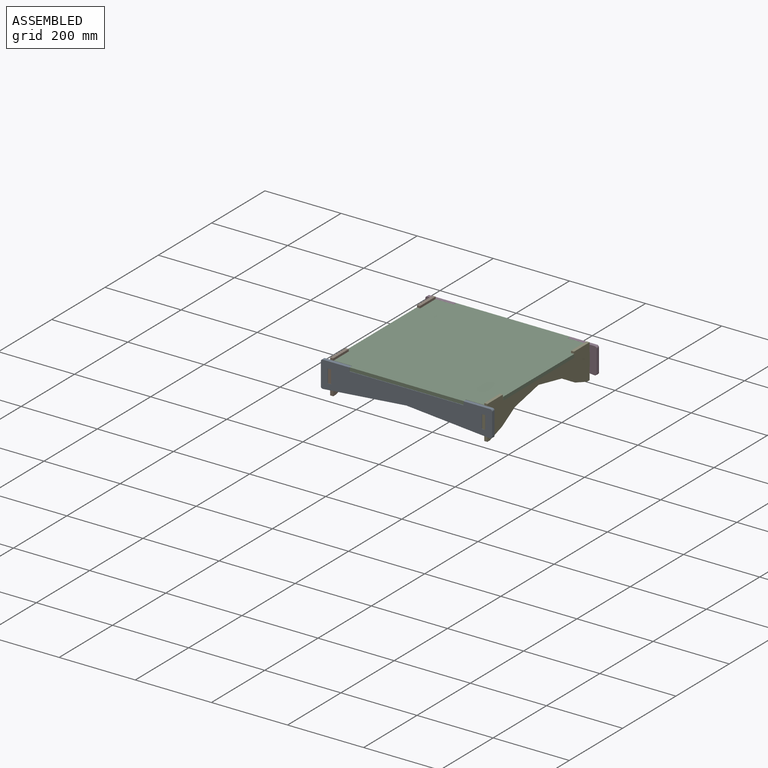
[diagram: assembled view]
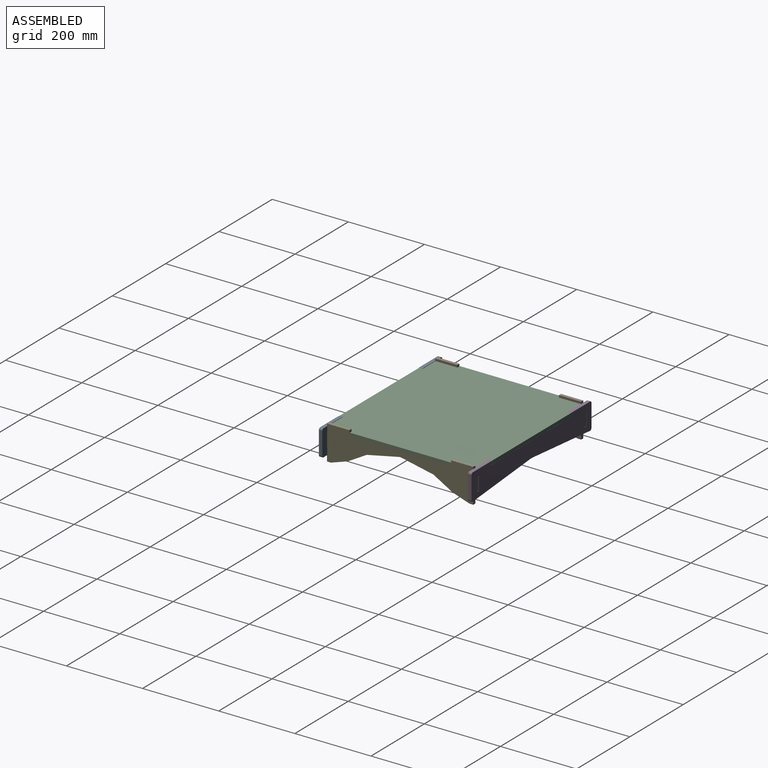
[diagram: assembled view, second angle]
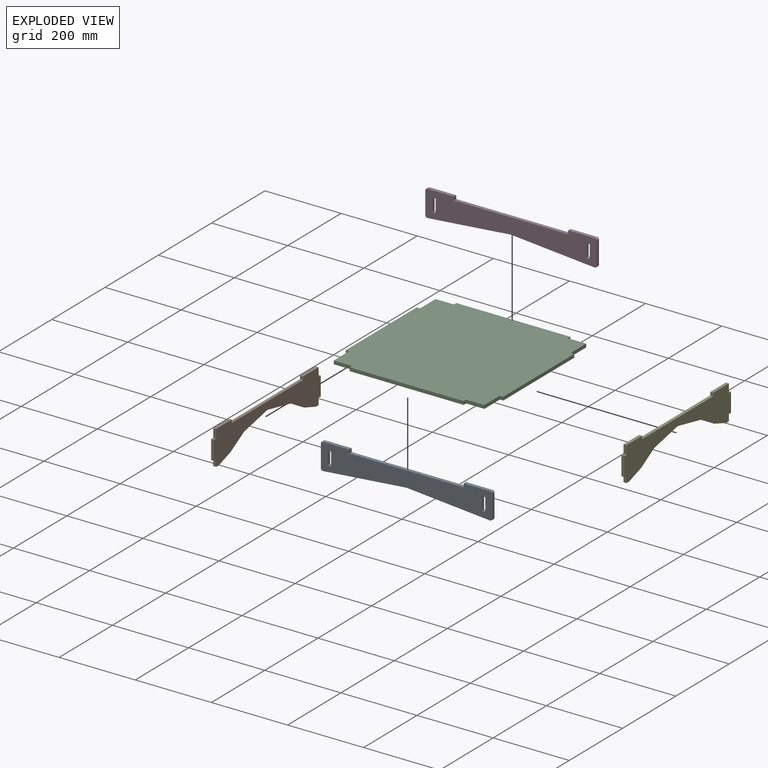
[diagram: exploded view]
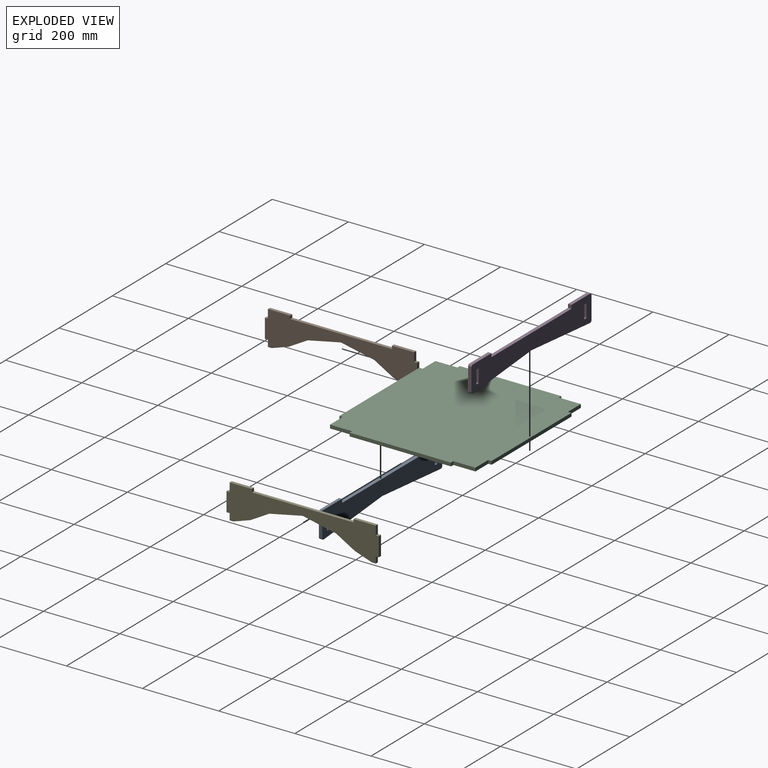
[diagram: exploded view, second angle]
ASSEMBLY  parts=5 mates=4
PART A: 23 faces, bbox 450x9x69.5 mm
  f0: plane 9.2x9mm, normal (0,0,-1), area 82.8mm2, adj f1,f20,f21,f22
  f1: plane 35.2x9mm, normal (-1,0,0), area 316.8mm2, adj f0,f2,f21,f22
  f2: plane 9.2x9mm, normal (0,0,1), area 82.8mm2, adj f1,f20,f21,f22
  f3: cylinder r=5mm len=9mm, axis (0,1,0), area 74.6mm2, adj f4,f18,f21,f22
  f4: plane 219.56x19.21mm, normal (0.09,0,-1), area 1983.6mm2, adj f3,f5,f21,f22
  f5: plane 219.56x19.21mm, normal (-0.09,0,-1), area 1983.6mm2, adj f4,f6,f21,f22
  f6: cylinder r=5mm len=9mm, axis (0,1,0), area 74.6mm2, adj f5,f7,f21,f22
  f7: plane 59.54x9mm, normal (1,0,0), area 535.9mm2, adj f6,f8,f21,f22
  f8: cylinder r=5mm len=9mm, axis (0,1,0), area 70.7mm2, adj f7,f9,f21,f22
  f9: plane 70x9mm, normal (0,0,1), area 630mm2, adj f8,f10,f21,f22
  f10: plane 9.2x9mm, normal (-1,0,0), area 82.8mm2, adj f9,f11,f21,f22
  f11: plane 300x9mm, normal (0,0,1), area 2700mm2, adj f10,f12,f21,f22
  f12: plane 9.2x9mm, normal (1,0,0), area 82.8mm2, adj f11,f13,f21,f22
  f13: plane 70x9mm, normal (0,0,1), area 630mm2, adj f12,f14,f21,f22
  f14: cylinder r=5mm len=9mm, axis (0,1,0), area 70.7mm2, adj f13,f18,f21,f22
  f15: plane 35.2x9mm, normal (1,0,0), area 316.8mm2, adj f16,f19,f21,f22
  f16: plane 9.2x9mm, normal (0,0,-1), area 82.8mm2, adj f15,f17,f21,f22
  f17: plane 35.2x9mm, normal (-1,0,0), area 316.8mm2, adj f16,f19,f21,f22
  f18: plane 59.54x9mm, normal (-1,0,0), area 535.9mm2, adj f3,f14,f21,f22
  f19: plane 9.2x9mm, normal (0,0,1), area 82.8mm2, adj f15,f17,f21,f22
  f20: plane 35.2x9mm, normal (1,0,0), area 316.8mm2, adj f0,f2,f21,f22
  f21: plane 450x69.54mm, normal (0,-1,0), area 23639.4mm2, adj f0,f1,f2,f3,f4,f5,f6,f7
  f22: plane 450x69.54mm, normal (0,1,0), area 23639.4mm2, adj f0,f1,f2,f3,f4,f5,f6,f7
PART B: 25 faces, bbox 400x8x90 mm
  f0: plane 22.89x8mm, normal (1,0,0), area 183.1mm2, adj f1,f22,f23,f24
  f1: plane 58.47x8mm, normal (0,0,1), area 467.7mm2, adj f0,f2,f23,f24
  f2: plane 8x8mm, normal (-1,0,0), area 64mm2, adj f1,f3,f23,f24
  f3: plane 267.07x8mm, normal (0,0,1), area 2136.5mm2, adj f2,f4,f23,f24
  f4: plane 8x8mm, normal (1,0,0), area 64mm2, adj f3,f5,f23,f24
  f5: plane 58.47x8mm, normal (0,0,1), area 467.7mm2, adj f4,f6,f23,f24
  f6: plane 22.89x8mm, normal (-1,0,0), area 183.1mm2, adj f5,f7,f23,f24
  f7: plane 8x8mm, normal (0,0,1), area 64mm2, adj f6,f8,f23,f24
  f8: plane 50x8mm, normal (-1,0,0), area 400mm2, adj f7,f9,f23,f24
  f9: plane 8x8mm, normal (0,0,-1), area 64mm2, adj f8,f10,f23,f24
  f10: plane 17.11x8mm, normal (-1,0,0), area 136.9mm2, adj f9,f11,f23,f24
  f11: plane 10x8mm, normal (0,0,-1), area 80mm2, adj f10,f12,f23,f24
  f12: plane 44.44x14.98mm, normal (0.32,0,-0.95), area 375.2mm2, adj f11,f13,f23,f24
  f13: plane 50x28.73mm, normal (0.5,0,-0.87), area 461.3mm2, adj f12,f14,f23,f24
  f14: plane 87.56x18.3mm, normal (0.2,0,-0.98), area 715.6mm2, adj f13,f15,f23,f24
  f15: plane 87.56x18.3mm, normal (-0.2,0,-0.98), area 715.6mm2, adj f14,f16,f23,f24
  f16: plane 50x28.73mm, normal (-0.5,0,-0.87), area 461.3mm2, adj f15,f17,f23,f24
  f17: plane 44.44x14.98mm, normal (-0.32,0,-0.95), area 375.2mm2, adj f16,f18,f23,f24
  f18: plane 10x8mm, normal (0,0,-1), area 80mm2, adj f17,f19,f23,f24
  f19: plane 17.11x8mm, normal (1,0,0), area 136.9mm2, adj f18,f20,f23,f24
  f20: plane 8x8mm, normal (0,0,-1), area 64mm2, adj f19,f21,f23,f24
  f21: plane 50x8mm, normal (1,0,0), area 400mm2, adj f20,f22,f23,f24
  f22: plane 8x8mm, normal (0,0,1), area 64mm2, adj f0,f21,f23,f24
  f23: plane 400x90mm, normal (0,-1,0), area 20368.8mm2, adj f0,f1,f2,f3,f4,f5,f6,f7
  f24: plane 400x90mm, normal (0,1,0), area 20368.8mm2, adj f0,f1,f2,f3,f4,f5,f6,f7
PART C: 22 faces, bbox 400x413.6x9 mm
  f0: plane 9x9mm, normal (0,-1,0), area 81mm2, adj f1,f19,f20,f21
  f1: plane 48x9mm, normal (-1,0,0), area 432mm2, adj f0,f2,f20,f21
  f2: plane 57.87x9mm, normal (0,-1,0), area 520.8mm2, adj f1,f3,f20,f21
  f3: plane 9x9mm, normal (-1,0,0), area 81mm2, adj f2,f4,f20,f21
  f4: plane 266.27x9mm, normal (0,-1,0), area 2396.4mm2, adj f3,f5,f20,f21
  f5: plane 9x9mm, normal (1,0,0), area 81mm2, adj f4,f6,f20,f21
  f6: plane 57.87x9mm, normal (0,-1,0), area 520.8mm2, adj f5,f7,f20,f21
  f7: plane 48x9mm, normal (1,0,0), area 432mm2, adj f6,f8,f20,f21
  f8: plane 9x9mm, normal (0,-1,0), area 81mm2, adj f7,f9,f20,f21
  f9: plane 299.6x9mm, normal (1,0,0), area 2696.4mm2, adj f8,f10,f20,f21
  f10: plane 9x9mm, normal (0,1,0), area 81mm2, adj f9,f11,f20,f21
  f11: plane 48x9mm, normal (1,0,0), area 432mm2, adj f10,f12,f20,f21
  f12: plane 57.87x9mm, normal (0,1,0), area 520.8mm2, adj f11,f13,f20,f21
  f13: plane 9x9mm, normal (1,0,0), area 81mm2, adj f12,f14,f20,f21
  f14: plane 266.27x9mm, normal (0,1,0), area 2396.4mm2, adj f13,f15,f20,f21
  f15: plane 9x9mm, normal (-1,0,0), area 81mm2, adj f14,f16,f20,f21
  f16: plane 57.87x9mm, normal (0,1,0), area 520.8mm2, adj f15,f17,f20,f21
  f17: plane 48x9mm, normal (-1,0,0), area 432mm2, adj f16,f18,f20,f21
  f18: plane 9x9mm, normal (0,1,0), area 81mm2, adj f17,f19,f20,f21
  f19: plane 299.6x9mm, normal (-1,0,0), area 2696.4mm2, adj f0,f18,f20,f21
  f20: plane 413.6x400mm, normal (0,0,1), area 161304.8mm2, adj f0,f1,f2,f3,f4,f5,f6,f7
  f21: plane 413.6x400mm, normal (0,0,-1), area 161304.8mm2, adj f0,f1,f2,f3,f4,f5,f6,f7
PART D: same geometry as A
PART E: same geometry as B
PLACE A rot(axis=(0,-0.14,-0.99),0deg) t=(-273.42,95.6,-148.86)mm
PLACE B rot(axis=(0,0,1),90deg) t=(-254.82,287.1,-189.9)mm
PLACE C rot(axis=(0,0,1),90deg) t=(-48.62,287.6,-87.96)mm
PLACE D rot(axis=(0,0,1),0deg) t=(-273.42,487.6,-148.86)mm
PLACE E rot(axis=(0,0,1),90deg) t=(149.98,287.1,-189.9)mm
MATE fastened B.f7 <-> A.f16  axis (0,0,1) through (-250.82,91.1,-96.36)mm
MATE fastened C.f10 <-> D.f12  axis (-1,0,0) through (-198.42,483.1,-83.46)mm
MATE fastened E.f22 <-> D.f0  axis (0,0,1) through (153.98,483.1,-96.36)mm
MATE fastened A.f0 <-> E.f7  axis (0,0,-1) through (153.98,91.1,-96.36)mm
